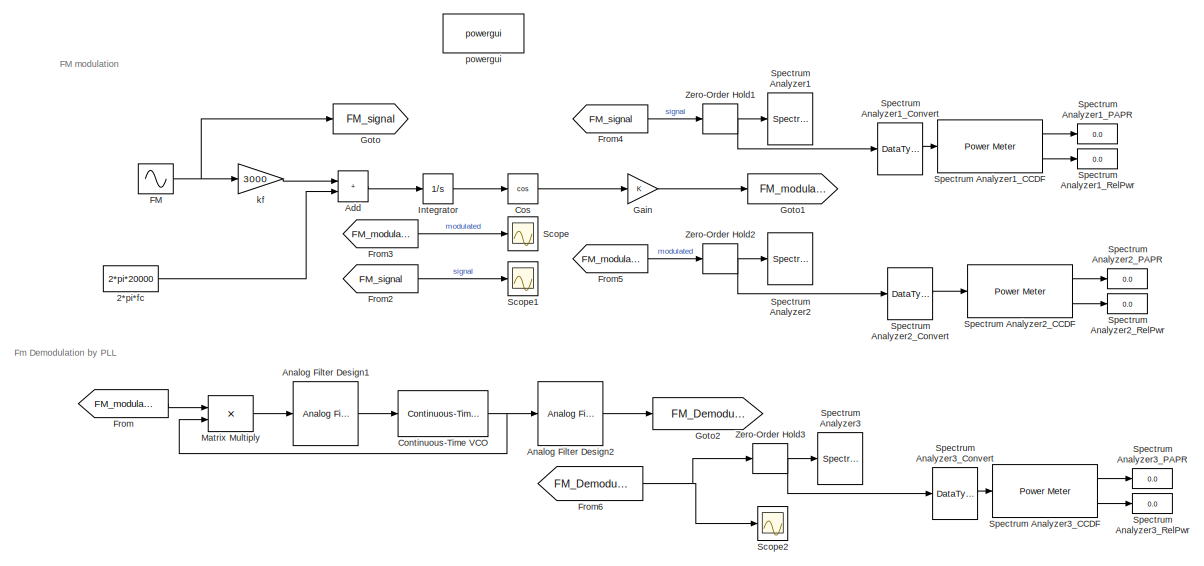
[diagram: root canvas - part 1/2, full width, top band]
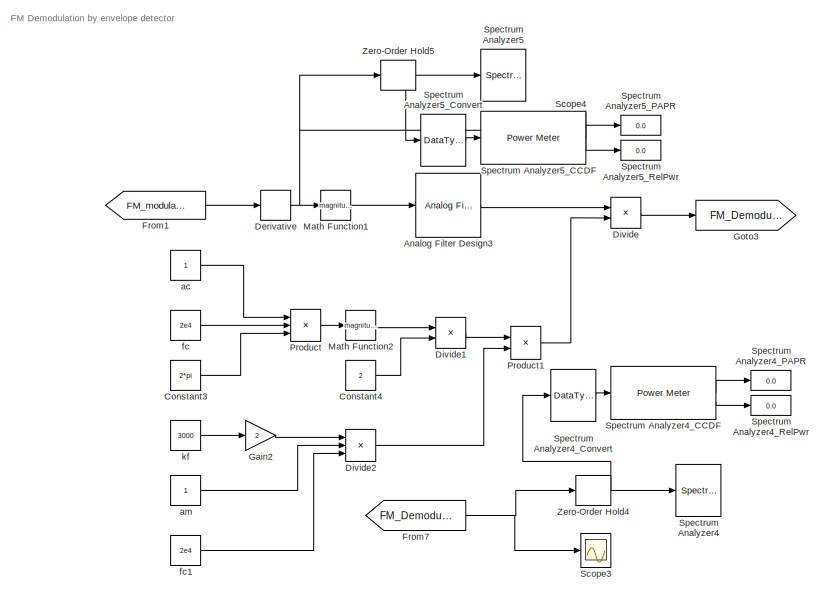
[diagram: root canvas - part 2/2, bottom center region]
MODEL slx_314ad801270e
KIND model
CONFIG AbsTol = auto
CONFIG EnableMultiTasking = off
CONFIG FixedStep = auto
CONFIG MaxStep = auto
CONFIG MinStep = auto
CONFIG RelTol = 1e-3
CONFIG SampleTimeConstraint = Unconstrained
CONFIG SolverName = VariableStepAuto
CONFIG StartTime = 0.0
CONFIG StopTime = 0.05
BLOCK [Constant] 2*pi*fc
  Value = 2*pi*20000
BLOCK [Sum] Add
  IconShape = rectangular
BLOCK [Reference] Analog Filter Design1  REF=dspfdesign/Analog
Filter Design
  SourceBlock = dspfdesign/Analog\nFilter Design
  SourceType = Analog Filter Design
BLOCK [Reference] Analog Filter Design2  REF=dspfdesign/Analog
Filter Design
  SourceBlock = dspfdesign/Analog\nFilter Design
  SourceType = Analog Filter Design
BLOCK [Reference] Analog Filter Design3  REF=dspfdesign/Analog
Filter Design
  SourceBlock = dspfdesign/Analog\nFilter Design
  SourceType = Analog Filter Design
BLOCK [Constant] Constant3
  Value = 2*pi
BLOCK [Constant] Constant4
  Value = 2
BLOCK [Reference] Continuous-Time VCO  REF=commsynccomp2/Continuous-Time
VCO
  Commented = on
  SourceBlock = commsynccomp2/Continuous-Time\nVCO
  SourceType = Continuous-Time VCO
BLOCK [Trigonometry] Cos
  Operator = cos
BLOCK [Derivative] Derivative
BLOCK [Product] Divide
  Inputs = */
BLOCK [Product] Divide1
  Inputs = */
BLOCK [Product] Divide2
  Inputs = **/
BLOCK [Sin] FM 
  Frequency = pi*2*500
  SampleTime = 0
BLOCK [From] From
  GotoTag = FM_modulated
BLOCK [From] From1
  GotoTag = FM_modulated
BLOCK [From] From2
  GotoTag = FM_signal
BLOCK [From] From3
  GotoTag = FM_modulated
BLOCK [From] From4
  GotoTag = FM_signal
BLOCK [From] From5
  GotoTag = FM_modulated
BLOCK [From] From6
  GotoTag = FM_Demodulated
BLOCK [From] From7
  GotoTag = FM_Demodulated2
BLOCK [Gain] Gain
BLOCK [Gain] Gain2
  Gain = 2
BLOCK [Goto] Goto
  GotoTag = FM_signal
  IconDisplay = Signal name
BLOCK [Goto] Goto1
  GotoTag = FM_modulated
  IconDisplay = Tag and signal name
BLOCK [Goto] Goto2
  GotoTag = FM_Demodulated
BLOCK [Goto] Goto3
  GotoTag = FM_Demodulated2
BLOCK [Integrator] Integrator
BLOCK [Math] Math Function1
  Operator = magnitude^2
  SignedPower = on
BLOCK [Math] Math Function2
  Operator = magnitude^2
  SignedPower = on
BLOCK [Product] Matrix Multiply
  Multiplication = Matrix(*)
BLOCK [Product] Product
  Inputs = 3
BLOCK [Product] Product1
BLOCK [Scope] Scope
  Floating = off
  NumInputPorts = 1
  ScopeSpecificationString = Simulink.scopes.TimeScopeBlockCfg('CurrentConfiguration', extmgr.ConfigurationSet(extmgr.Configuration('Core','General UI',true),extmgr.Configuration('Core','Source UI',true),extmgr.Configuration('Sources','WiredSimulink',true),extmgr.Configuration('Visuals','Time Domain',true,'SerializedDisplays',{struct('MinYLimReal','-1.25','MaxYLimReal','1.25','YLabelReal','','MinYLimMag','0.00000','MaxYLimMag...<+1638ch>
BLOCK [Scope] Scope1
  Floating = off
  NumInputPorts = 1
  ScopeSpecificationString = Simulink.scopes.TimeScopeBlockCfg('CurrentConfiguration', extmgr.ConfigurationSet(extmgr.Configuration('Core','General UI',true),extmgr.Configuration('Core','Source UI',true),extmgr.Configuration('Sources','WiredSimulink',true,'DataLoggingVariableName','ScopeData1'),extmgr.Configuration('Visuals','Time Domain',true,'SerializedDisplays',{struct('MinYLimReal','-1.25','MaxYLimReal','1.25','YLabelReal...<+1679ch>
BLOCK [Scope] Scope2
  Floating = off
  NumInputPorts = 1
  ScopeSpecificationString = Simulink.scopes.TimeScopeBlockCfg('CurrentConfiguration', extmgr.ConfigurationSet(extmgr.Configuration('Core','General UI',true),extmgr.Configuration('Core','Source UI',true),extmgr.Configuration('Sources','WiredSimulink',true,'DataLoggingVariableName','ScopeData2'),extmgr.Configuration('Visuals','Time Domain',true,'SerializedDisplays',{struct('MinYLimReal','-1.24993','MaxYLimReal','1.24999','YLab...<+1610ch>
BLOCK [Scope] Scope3
  Floating = off
  NumInputPorts = 1
  ScopeSpecificationString = Simulink.scopes.TimeScopeBlockCfg('CurrentConfiguration', extmgr.ConfigurationSet(extmgr.Configuration('Core','General UI',true),extmgr.Configuration('Core','Source UI',true),extmgr.Configuration('Sources','WiredSimulink',true,'DataLoggingVariableName','ScopeData3'),extmgr.Configuration('Visuals','Time Domain',true,'SerializedDisplays',{struct('MinYLimReal','-0.77369','MaxYLimReal','0.81356','YLab...<+1699ch>
BLOCK [Scope] Scope4
  Floating = off
  NumInputPorts = 1
  ScopeSpecificationString = Simulink.scopes.TimeScopeBlockCfg('CurrentConfiguration', extmgr.ConfigurationSet(extmgr.Configuration('Core','General UI',true),extmgr.Configuration('Core','Source UI',true),extmgr.Configuration('Sources','WiredSimulink',true,'DataLoggingVariableName','ScopeData1'),extmgr.Configuration('Visuals','Time Domain',true,'SerializedDisplays',{struct('MinYLimReal','-160804.97659','MaxYLimReal','160737.23...<+1589ch>
BLOCK [SpectrumAnalyzer] Spectrum Analyzer1
  AllowFFTLengthLessThanSamplesPerUpdate = on
  AveragingMethod = Running
  AxesScaling = Manual
  ChannelNames = ["FM message signal"]
  DefaultConfigurationName = spbscopes.SpectrumAnalyzerBlockCfg
  FrequencyInputRBWFromPort = 0
  FrequencyInputRBWPort = 0
  FrequencyVectorFromPort = 0
  FrequencyVectorPort = 0
  GraphicalSettings = {"GraphicalSettings":{"Channel":{"ACPROffsets":"[1426.66666666667 2496.66666666667]","AdjacentBW":"713.333333333333","CenterFrequency":"0","Enabled":"false","FilterCoeff":"0.5","FilterShape":"None","FrequencySpan":"span-and-center-frequency","NumOffsets":"2","PercentOccupiedBW":"99","Span":"1426.66666666667","StartFrequency":"-713.333333333333","StopFrequency":"713.333333333333","Type":"occupied-b...<+1081ch>
  IsFrequencyInputMode = 0
  Method = Welch
  OpenAtSimulationStart = off
  SampleRate = 5000
  ScopeFrameLocation = window
  ScopeSpecificationString = spbscopes.SpectrumAnalyzerBlockCfg('CurrentConfiguration', extmgr.ConfigurationSet(extmgr.Configuration('Core','General UI',true),extmgr.Configuration('Core','Source UI',true),extmgr.Configuration('Sources','WiredSimulink',true),extmgr.Configuration('Visuals','Spectrum',true,'AxesProperties',struct('Color',{[0 0 0],[0 0 0]},'XColor',{[0.686274509803922 0.686274509803922 0.686274509803922],[0.68627...<+3156ch>
  ShowLegend = on
  SpectrumType = RMS
  SpectrumUnits = Vrms
  WasSavedAsWebScope = on
  WindowPosition = [-6.000000,-9.000000,1282.000000,700.000000,]
  YLimits = [-0.060904247557560707571,0.54813822882120266655]
BLOCK [Reference] Spectrum Analyzer1_CCDF  REF=dspstat3/Power Meter
  SourceBlock = dspstat3/Power Meter
  SourceType = dsp.simulink.PowerMeter
BLOCK [DataTypeConversion] Spectrum Analyzer1_Convert
  OutDataTypeStr = double
BLOCK [Display] Spectrum Analyzer1_PAPR
BLOCK [Display] Spectrum Analyzer1_RelPwr
BLOCK [SpectrumAnalyzer] Spectrum Analyzer2
  AllowFFTLengthLessThanSamplesPerUpdate = on
  AveragingMethod = Running
  AxesScaling = Manual
  ChannelNames = ["Fm modulated signal"]
  DefaultConfigurationName = spbscopes.SpectrumAnalyzerBlockCfg
  FrequencyInputRBWFromPort = 0
  FrequencyInputRBWPort = 0
  FrequencyVectorFromPort = 0
  FrequencyVectorPort = 0
  GraphicalSettings = {"GraphicalSettings":{"Channel":{"ACPROffsets":"[1426.66666666667 2496.66666666667]","AdjacentBW":"713.333333333333","CenterFrequency":"0","Enabled":"false","FilterCoeff":"0.5","FilterShape":"None","FrequencySpan":"span-and-center-frequency","NumOffsets":"2","PercentOccupiedBW":"99","Span":"1426.66666666667","StartFrequency":"-713.333333333333","StopFrequency":"713.333333333333","Type":"occupied-b...<+1081ch>
  IsFrequencyInputMode = 0
  Method = Welch
  OpenAtSimulationStart = off
  SampleRate = 200000
  ScopeFrameLocation = window
  ScopeSpecificationString = spbscopes.SpectrumAnalyzerBlockCfg('CurrentConfiguration', extmgr.ConfigurationSet(extmgr.Configuration('Core','General UI',true),extmgr.Configuration('Core','Source UI',true),extmgr.Configuration('Sources','WiredSimulink',true),extmgr.Configuration('Visuals','Spectrum',true,'AxesProperties',struct('Color',{[0 0 0],[0 0 0]},'XColor',{[0.686274509803922 0.686274509803922 0.686274509803922],[0.68627...<+3107ch>
  ShowLegend = on
  SpectrumType = RMS
  SpectrumUnits = Vrms
  WasSavedAsWebScope = on
  WindowPosition = [-128.000000,-14.000000,1282.000000,700.000000,]
  YLimits = [-0.044331986242742905946,0.39898787640275168442]
BLOCK [Reference] Spectrum Analyzer2_CCDF  REF=dspstat3/Power Meter
  SourceBlock = dspstat3/Power Meter
  SourceType = dsp.simulink.PowerMeter
BLOCK [DataTypeConversion] Spectrum Analyzer2_Convert
  OutDataTypeStr = double
BLOCK [Display] Spectrum Analyzer2_PAPR
BLOCK [Display] Spectrum Analyzer2_RelPwr
BLOCK [SpectrumAnalyzer] Spectrum Analyzer3
  AllowFFTLengthLessThanSamplesPerUpdate = on
  AveragingMethod = Running
  AxesScaling = Manual
  ChannelNames = ["demodulation using PLL"]
  DefaultConfigurationName = spbscopes.SpectrumAnalyzerBlockCfg
  FrequencyInputRBWFromPort = 0
  FrequencyInputRBWPort = 0
  FrequencyVectorFromPort = 0
  FrequencyVectorPort = 0
  GraphicalSettings = {"GraphicalSettings":{"Channel":{"ACPROffsets":"[1426.66666666667 2496.66666666667]","AdjacentBW":"713.333333333333","CenterFrequency":"0","Enabled":"false","FilterCoeff":"0.5","FilterShape":"None","FrequencySpan":"span-and-center-frequency","NumOffsets":"2","PercentOccupiedBW":"99","Span":"1426.66666666667","StartFrequency":"-713.333333333333","StopFrequency":"713.333333333333","Type":"occupied-b...<+1084ch>
  IsFrequencyInputMode = 0
  Method = Welch
  OpenAtSimulationStart = off
  SampleRate = 5000
  ScopeFrameLocation = window
  ScopeSpecificationString = spbscopes.SpectrumAnalyzerBlockCfg('CurrentConfiguration', extmgr.ConfigurationSet(extmgr.Configuration('Core','General UI',true),extmgr.Configuration('Core','Source UI',true),extmgr.Configuration('Sources','WiredSimulink',true),extmgr.Configuration('Sources','SPTool',false),extmgr.Configuration('Sources','File',false),extmgr.Configuration('Sources','Workspace',false),extmgr.Configuration('Sources...<+4448ch>
  ShowLegend = on
  SpectrumType = RMS
  SpectrumUnits = Vrms
  Visible = on
  WasSavedAsWebScope = on
  WindowPosition = [-128.000000,-14.000000,1282.000000,700.000000,]
  YLimits = [-0.062357931574312124023,0.56122138431727885965]
BLOCK [Reference] Spectrum Analyzer3_CCDF  REF=dspstat3/Power Meter
  SourceBlock = dspstat3/Power Meter
  SourceType = dsp.simulink.PowerMeter
BLOCK [DataTypeConversion] Spectrum Analyzer3_Convert
  OutDataTypeStr = double
BLOCK [Display] Spectrum Analyzer3_PAPR
BLOCK [Display] Spectrum Analyzer3_RelPwr
BLOCK [SpectrumAnalyzer] Spectrum Analyzer4
  AllowFFTLengthLessThanSamplesPerUpdate = on
  AveragingMethod = Running
  AxesScaling = Manual
  ChannelNames = ["FM Demodulation by envelope detector"]
  DefaultConfigurationName = spbscopes.SpectrumAnalyzerBlockCfg
  FrequencyInputRBWFromPort = 0
  FrequencyInputRBWPort = 0
  FrequencyVectorFromPort = 0
  FrequencyVectorPort = 0
  GraphicalSettings = {"GraphicalSettings":{"Style":{"BackgroundColor":[0.12941176470588237,0.12941176470588237,0.12941176470588237],"AxesColor":[0,0,0],"LabelsColor":[0.6862745098039216,0.6862745098039216,0.6862745098039216],"PreserveColors":false,"Visible":[true,true,true,true,true,true,true],"LineStyle":["-","-","-","-","-","-","-"],"LineColor":[[1,0.9098039215686274,0.39215686274509803],[0.14901960784313725,0.54901...<+1424ch>
  IsFrequencyInputMode = 0
  Method = Welch
  OpenAtSimulationStart = off
  SampleRate = 5000
  ScopeFrameLocation = window
  ScopeSpecificationString = spbscopes.SpectrumAnalyzerBlockCfg('CurrentConfiguration', extmgr.ConfigurationSet(extmgr.Configuration('Core','General UI',true),extmgr.Configuration('Core','Source UI',true),extmgr.Configuration('Sources','WiredSimulink',true),extmgr.Configuration('Sources','SPTool',false),extmgr.Configuration('Sources','File',false),extmgr.Configuration('Sources','Workspace',false),extmgr.Configuration('Sources...<+4502ch>
  SelectedToolstripTab = spectrumAnalyzerToolstrip.estimationTab
  ShowLegend = on
  SpectrumType = RMS
  SpectrumUnits = Vrms
  WasSavedAsWebScope = on
  WindowPosition = [-1.000000,10.000000,1282.000000,700.000000,]
  YLimits = [-0.0088911251986494369004,0.0800201267902619362]
BLOCK [Reference] Spectrum Analyzer4_CCDF  REF=dspstat3/Power Meter
  SourceBlock = dspstat3/Power Meter
  SourceType = dsp.simulink.PowerMeter
BLOCK [DataTypeConversion] Spectrum Analyzer4_Convert
  OutDataTypeStr = double
BLOCK [Display] Spectrum Analyzer4_PAPR
BLOCK [Display] Spectrum Analyzer4_RelPwr
BLOCK [SpectrumAnalyzer] Spectrum Analyzer5
  AllowFFTLengthLessThanSamplesPerUpdate = on
  AveragingMethod = Running
  AxesScaling = Manual
  ChannelNames = ["frequency for ds/dt for modulated signal"]
  DefaultConfigurationName = spbscopes.SpectrumAnalyzerBlockCfg
  FrequencyInputRBWFromPort = 0
  FrequencyInputRBWPort = 0
  FrequencyVectorFromPort = 0
  FrequencyVectorPort = 0
  GraphicalSettings = {"GraphicalSettings":{"Channel":{"ACPROffsets":"[1426.66666666667 2496.66666666667]","AdjacentBW":"713.333333333333","CenterFrequency":"0","Enabled":"false","FilterCoeff":"0.5","FilterShape":"None","FrequencySpan":"span-and-center-frequency","NumOffsets":"2","PercentOccupiedBW":"99","Span":"1426.66666666667","StartFrequency":"-713.333333333333","StopFrequency":"713.333333333333","Type":"occupied-b...<+1103ch>
  IsFrequencyInputMode = 0
  Method = Welch
  OpenAtSimulationStart = off
  SampleRate = 200000
  ScopeFrameLocation = window
  ScopeSpecificationString = spbscopes.SpectrumAnalyzerBlockCfg('CurrentConfiguration', extmgr.ConfigurationSet(extmgr.Configuration('Core','General UI',true),extmgr.Configuration('Core','Source UI',true),extmgr.Configuration('Sources','WiredSimulink',true),extmgr.Configuration('Sources','SPTool',false),extmgr.Configuration('Sources','File',false),extmgr.Configuration('Sources','Workspace',false),extmgr.Configuration('Sources...<+4635ch>
  ShowLegend = on
  SpectrumType = RMS
  SpectrumUnits = Vrms
  WasSavedAsWebScope = on
  WindowPosition = [1.000000,1.000000,1280.000000,697.000000,]
  YLimits = [-5580.1735660495241973,50269.691680596522929]
BLOCK [Reference] Spectrum Analyzer5_CCDF  REF=dspstat3/Power Meter
  SourceBlock = dspstat3/Power Meter
  SourceType = dsp.simulink.PowerMeter
BLOCK [DataTypeConversion] Spectrum Analyzer5_Convert
  OutDataTypeStr = double
BLOCK [Display] Spectrum Analyzer5_PAPR
BLOCK [Display] Spectrum Analyzer5_RelPwr
BLOCK [ZeroOrderHold] Zero-Order Hold1
  SampleTime = 1/(10*5e2)
BLOCK [ZeroOrderHold] Zero-Order Hold2
  SampleTime = 1/(10*2e4)
BLOCK [ZeroOrderHold] Zero-Order Hold3
  SampleTime = 1/(10*500)
BLOCK [ZeroOrderHold] Zero-Order Hold4
  SampleTime = 1/(10*500)
BLOCK [ZeroOrderHold] Zero-Order Hold5
  SampleTime = -1
BLOCK [Constant] ac
BLOCK [Constant] am 
BLOCK [Constant] fc
  Value = 2e4
BLOCK [Constant] fc1
  Value = 2e4
BLOCK [Gain] kf
  Gain = 3000
BLOCK [Constant] kf 
  Value = 3000
BLOCK [Reference] powergui  REF=spspowerguiLib/powergui
  LibrarySourceBlock = sps_lib/powergui
  Priority = 1
  SourceBlock = spspowerguiLib/powergui
  SourceType = PSB option menu block
ANNOTATION (root): FM Demodulation by envelope detector
ANNOTATION (root): FM modulation
ANNOTATION (root): Fm Demodulation by PLL
LINE 2*pi*fc:1 -> Add:2
LINE Add:1 -> Integrator:1
LINE Analog Filter Design1:1 -> Continuous-Time VCO:1
LINE Analog Filter Design2:1 -> Goto2:1
LINE Analog Filter Design3:1 -> Divide:1
LINE Constant3:1 -> Product:3
LINE Constant4:1 -> Divide1:2
NET Continuous-Time VCO:1 -> Analog Filter Design2:1, Matrix Multiply:2
LINE Cos:1 -> Gain:1
NET Derivative:1 -> Math Function1:1, Scope4:1, Zero-Order Hold5:1
LINE Divide1:1 -> Product1:1
LINE Divide2:1 -> Product1:2
LINE Divide:1 -> Goto3:1
NET FM :1 -> Goto:1, kf:1
LINE From1:1 -> Derivative:1
LINE From2:1 -> Scope1:1
LINE From3:1 -> Scope:1
LINE From4:1 -> Zero-Order Hold1:1
LINE From5:1 -> Zero-Order Hold2:1
NET From6:1 -> Scope2:1, Zero-Order Hold3:1
NET From7:1 -> Scope3:1, Zero-Order Hold4:1
LINE From:1 -> Matrix Multiply:1
LINE Gain2:1 -> Divide2:1
LINE Gain:1 -> Goto1:1
LINE Integrator:1 -> Cos:1
LINE Math Function1:1 -> Analog Filter Design3:1
LINE Math Function2:1 -> Divide1:1
LINE Matrix Multiply:1 -> Analog Filter Design1:1
LINE Product1:1 -> Divide:2
LINE Product:1 -> Math Function2:1
LINE Spectrum Analyzer1_CCDF:1 -> Spectrum Analyzer1_PAPR:1
LINE Spectrum Analyzer1_CCDF:2 -> Spectrum Analyzer1_RelPwr:1
LINE Spectrum Analyzer1_Convert:1 -> Spectrum Analyzer1_CCDF:1
LINE Spectrum Analyzer2_CCDF:1 -> Spectrum Analyzer2_PAPR:1
LINE Spectrum Analyzer2_CCDF:2 -> Spectrum Analyzer2_RelPwr:1
LINE Spectrum Analyzer2_Convert:1 -> Spectrum Analyzer2_CCDF:1
LINE Spectrum Analyzer3_CCDF:1 -> Spectrum Analyzer3_PAPR:1
LINE Spectrum Analyzer3_CCDF:2 -> Spectrum Analyzer3_RelPwr:1
LINE Spectrum Analyzer3_Convert:1 -> Spectrum Analyzer3_CCDF:1
LINE Spectrum Analyzer4_CCDF:1 -> Spectrum Analyzer4_PAPR:1
LINE Spectrum Analyzer4_CCDF:2 -> Spectrum Analyzer4_RelPwr:1
LINE Spectrum Analyzer4_Convert:1 -> Spectrum Analyzer4_CCDF:1
LINE Spectrum Analyzer5_CCDF:1 -> Spectrum Analyzer5_PAPR:1
LINE Spectrum Analyzer5_CCDF:2 -> Spectrum Analyzer5_RelPwr:1
LINE Spectrum Analyzer5_Convert:1 -> Spectrum Analyzer5_CCDF:1
NET Zero-Order Hold1:1 -> Spectrum Analyzer1:1, Spectrum Analyzer1_Convert:1
NET Zero-Order Hold2:1 -> Spectrum Analyzer2:1, Spectrum Analyzer2_Convert:1
NET Zero-Order Hold3:1 -> Spectrum Analyzer3:1, Spectrum Analyzer3_Convert:1
NET Zero-Order Hold4:1 -> Spectrum Analyzer4:1, Spectrum Analyzer4_Convert:1
NET Zero-Order Hold5:1 -> Spectrum Analyzer5:1, Spectrum Analyzer5_Convert:1
LINE ac:1 -> Product:1
LINE am :1 -> Divide2:2
LINE fc1:1 -> Divide2:3
LINE fc:1 -> Product:2
LINE kf :1 -> Gain2:1
LINE kf:1 -> Add:1
note: NET lines group one-source signal fan-out (src -> all destinations, sorted); 1:1 wires keep LINE
